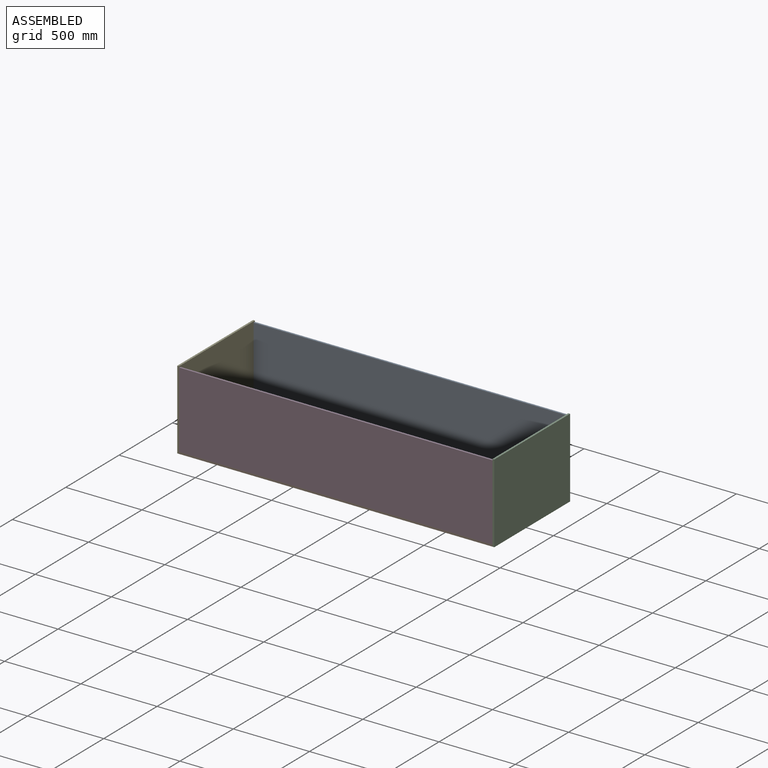
[diagram: assembled view]
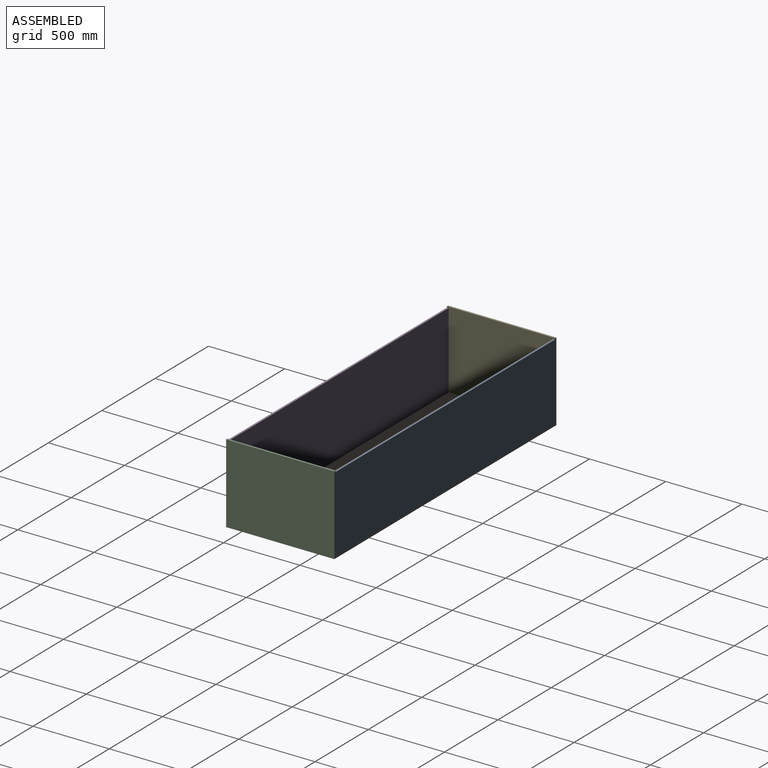
[diagram: assembled view, second angle]
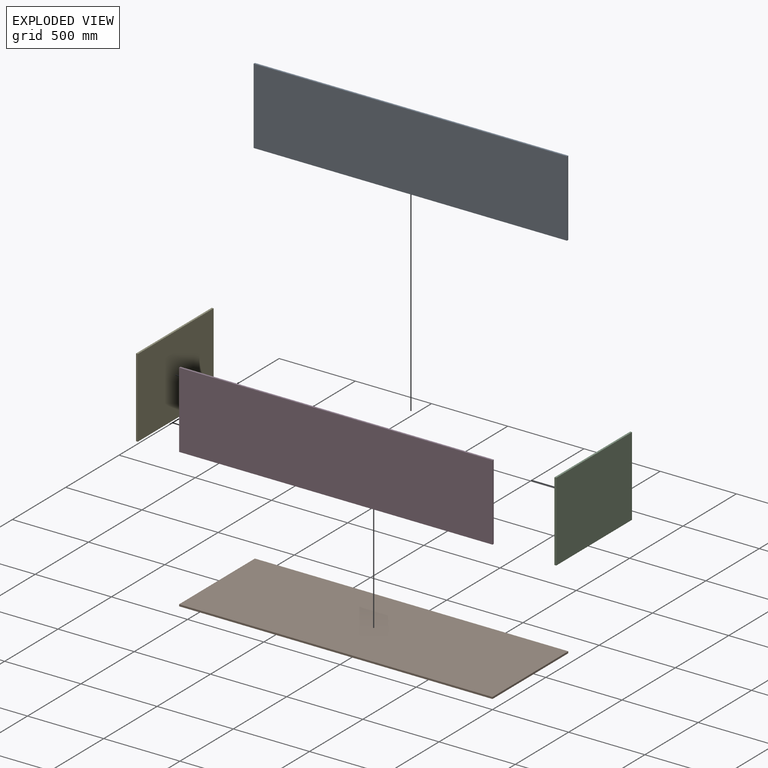
[diagram: exploded view]
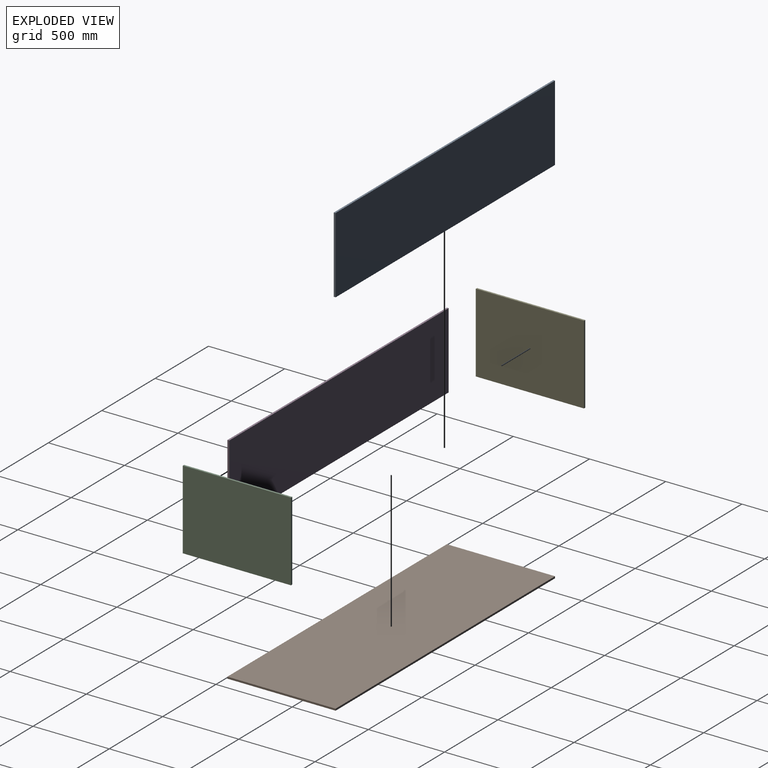
[diagram: exploded view, second angle]
ASSEMBLY  parts=5 mates=4
PART A: 6 faces, bbox 2056x12x500 mm
  f0: plane 2056x12mm, normal (0,0,1), area 24672mm2, adj f1,f3,f4,f5
  f1: plane 500x12mm, normal (-1,0,0), area 6000mm2, adj f0,f2,f4,f5
  f2: plane 2056x12mm, normal (0,0,-1), area 24672mm2, adj f1,f3,f4,f5
  f3: plane 500x12mm, normal (1,0,0), area 6000mm2, adj f0,f2,f4,f5
  f4: plane 2056x500mm, normal (0,-1,0), area 1028000mm2, adj f0,f1,f2,f3
  f5: plane 2056x500mm, normal (0,1,0), area 1028000mm2, adj f0,f1,f2,f3
PART B: 6 faces, bbox 2056x710x12 mm
  f0: plane 2056x12mm, normal (0,1,0), area 24672mm2, adj f1,f3,f4,f5
  f1: plane 710x12mm, normal (-1,0,0), area 8520mm2, adj f0,f2,f4,f5
  f2: plane 2056x12mm, normal (0,-1,0), area 24672mm2, adj f1,f3,f4,f5
  f3: plane 710x12mm, normal (1,0,0), area 8520mm2, adj f0,f2,f4,f5
  f4: plane 2056x710mm, normal (0,0,1), area 1459760mm2, adj f0,f1,f2,f3
  f5: plane 2056x710mm, normal (0,0,-1), area 1459760mm2, adj f0,f1,f2,f3
PART C: 6 faces, bbox 12x710x520 mm
  f0: plane 710x12mm, normal (0,0,1), area 8520mm2, adj f1,f3,f4,f5
  f1: plane 520x12mm, normal (0,-1,0), area 6240mm2, adj f0,f2,f4,f5
  f2: plane 710x12mm, normal (0,0,-1), area 8520mm2, adj f1,f3,f4,f5
  f3: plane 520x12mm, normal (0,1,0), area 6240mm2, adj f0,f2,f4,f5
  f4: plane 710x520mm, normal (1,0,0), area 369200mm2, adj f0,f1,f2,f3
  f5: plane 710x520mm, normal (-1,0,0), area 369200mm2, adj f0,f1,f2,f3
PART D: same geometry as A
PART E: same geometry as C
PLACE A t=(-91.22,260.88,494.21)mm
PLACE B t=(-52.5,85.97,174.75)mm fixed
PLACE C t=(964.81,431.59,174.75)mm
PLACE D t=(-91.22,-437.12,494.21)mm
PLACE E t=(-1103.19,431.59,174.75)mm
MATE fastened A.f2 <-> B.f4  axis (0,0,-1) through (964.81,260.88,186.75)mm
MATE fastened D.f2 <-> B.f4  axis (0,0,-1) through (-1091.19,-449.12,186.75)mm
MATE fastened B.f3 <-> C.f5  axis (1,0,0) through (964.81,-449.12,174.75)mm
MATE fastened B.f1 <-> E.f4  axis (-1,0,0) through (-1091.19,260.88,174.75)mm
